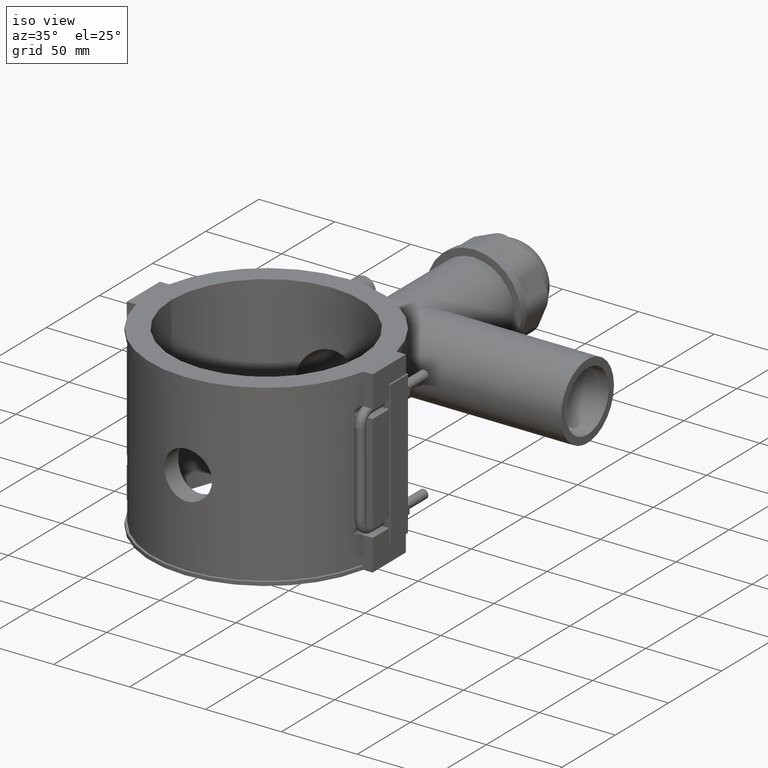
[diagram: clean part render]
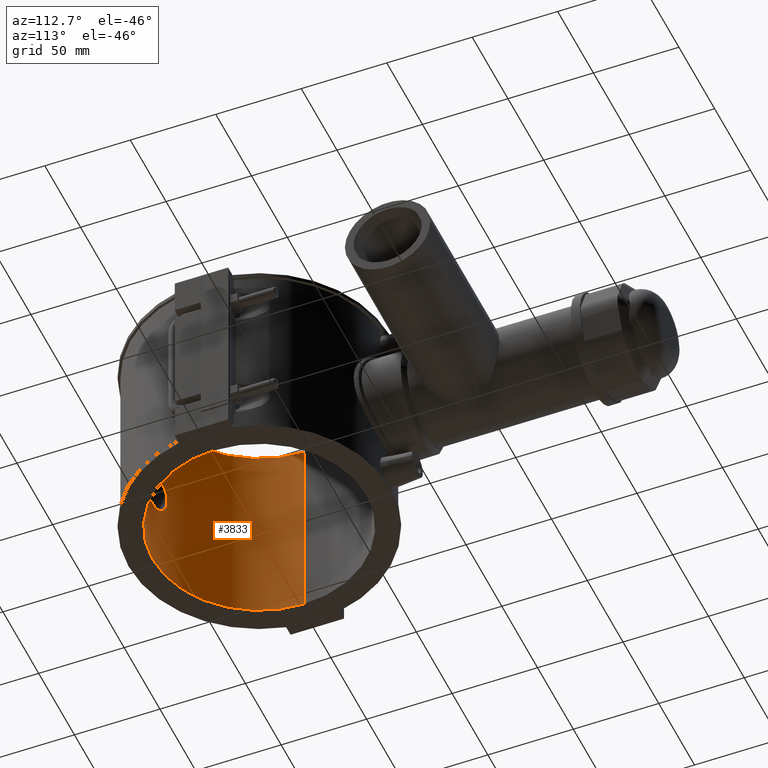
[diagram: tour spotlight — one face highlighted and labeled with its STEP entity id]
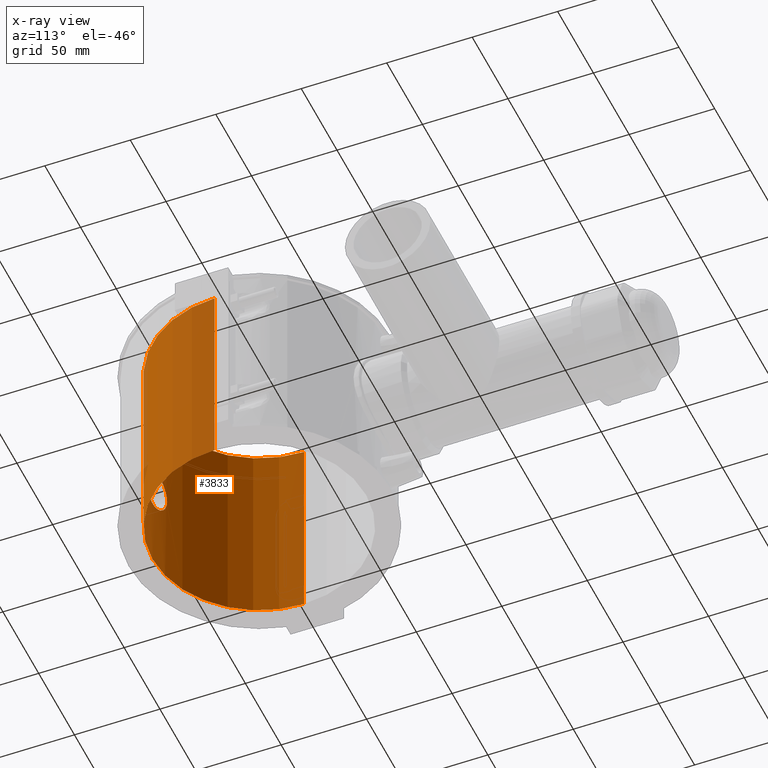
[diagram: x-ray of the same camera — body ghosted, this tour face saturated]
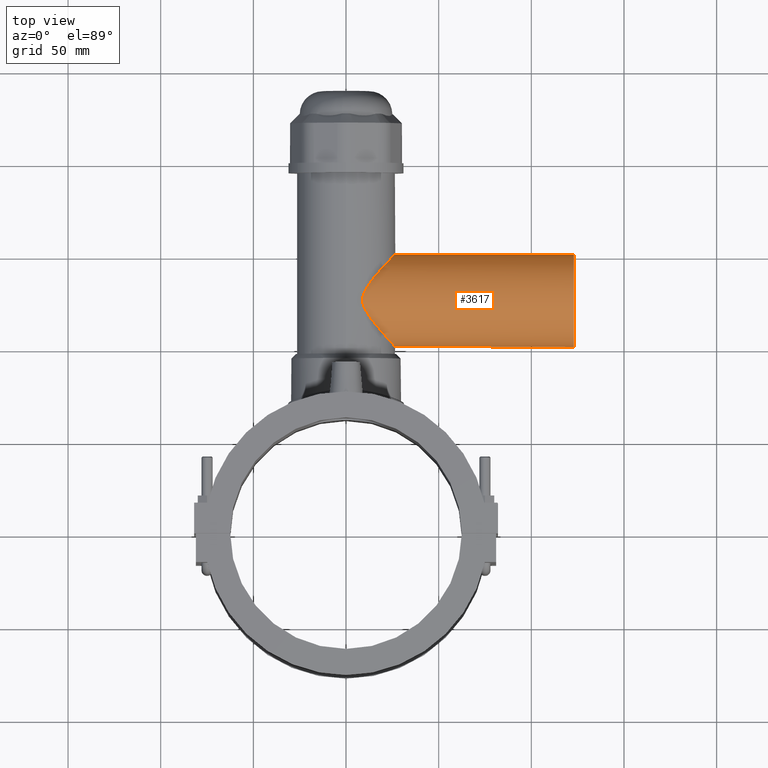
[diagram: tour spotlight — one face highlighted and labeled with its STEP entity id]
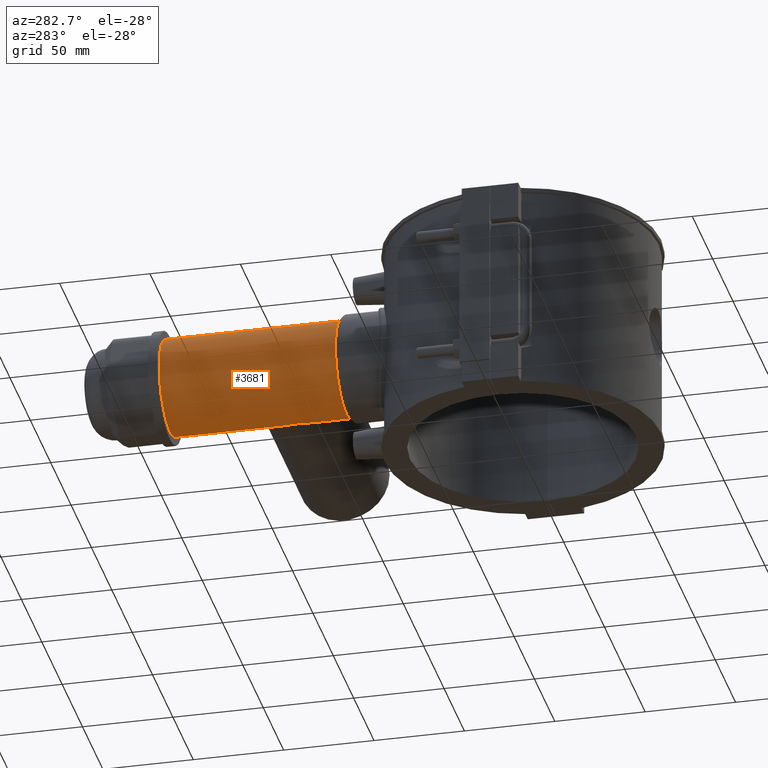
[diagram: tour spotlight — one face highlighted and labeled with its STEP entity id]
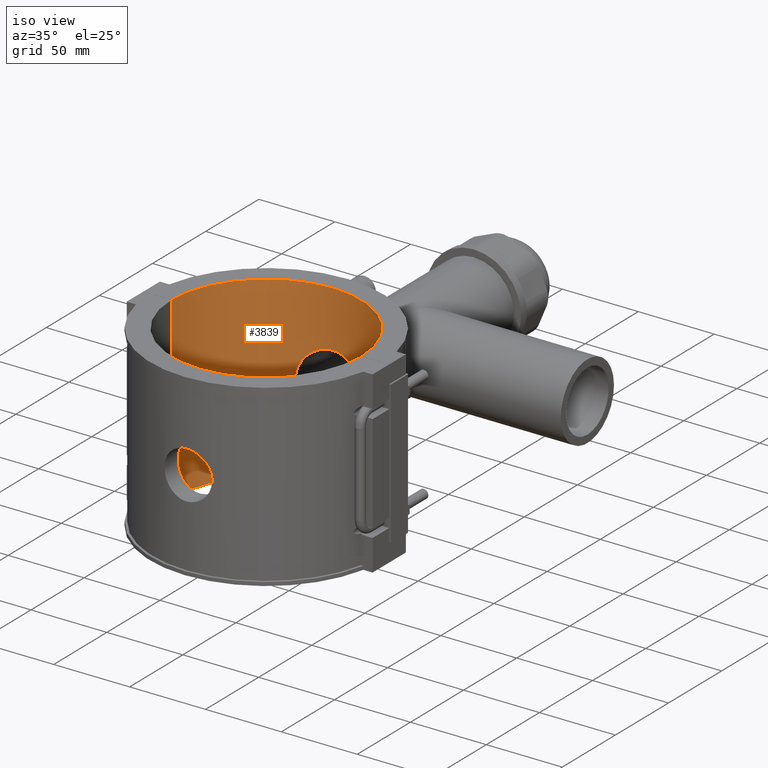
[diagram: tour spotlight — one face highlighted and labeled with its STEP entity id]
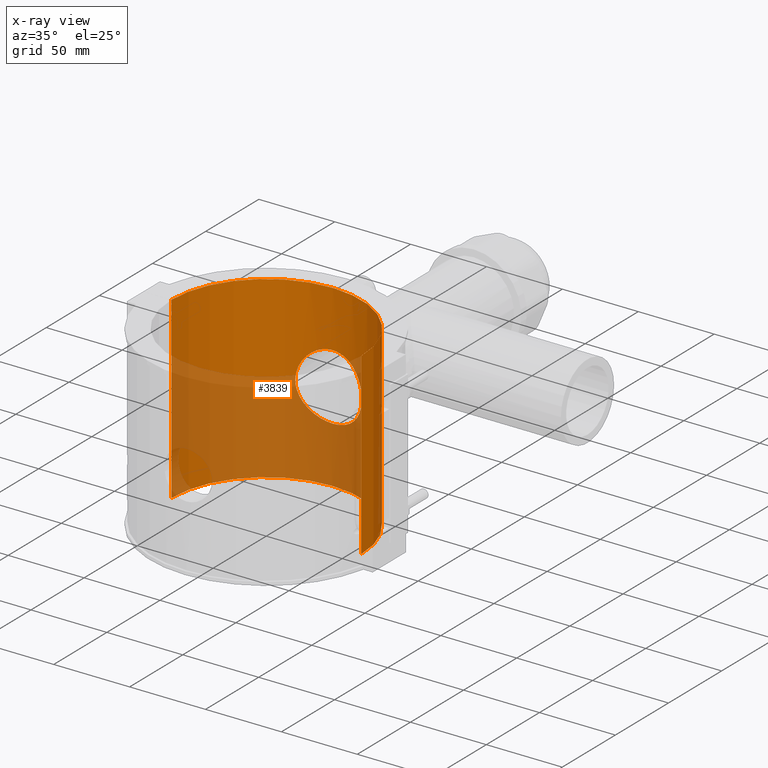
[diagram: x-ray of the same camera — body ghosted, this tour face saturated]
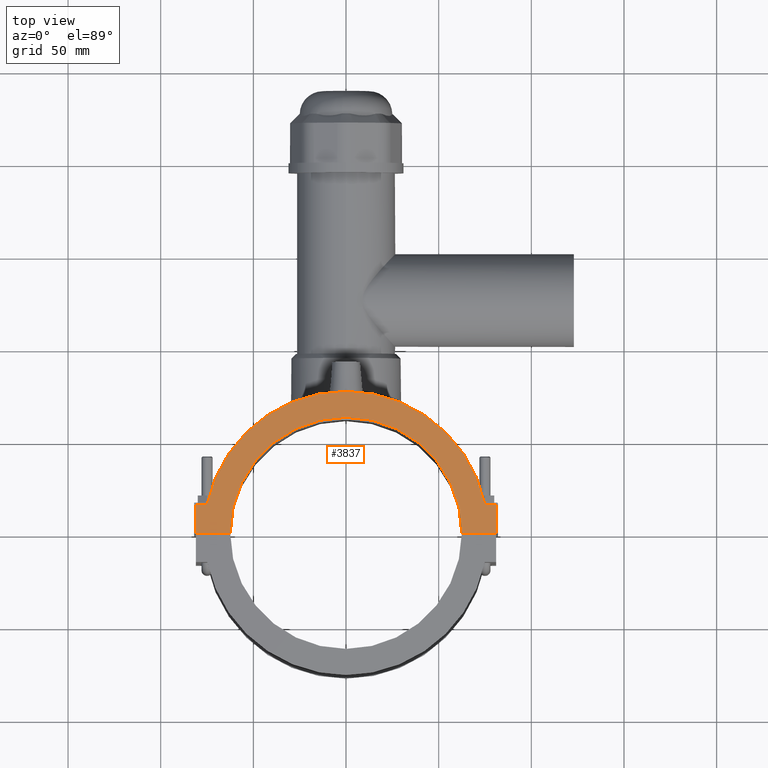
[diagram: tour spotlight — one face highlighted and labeled with its STEP entity id]
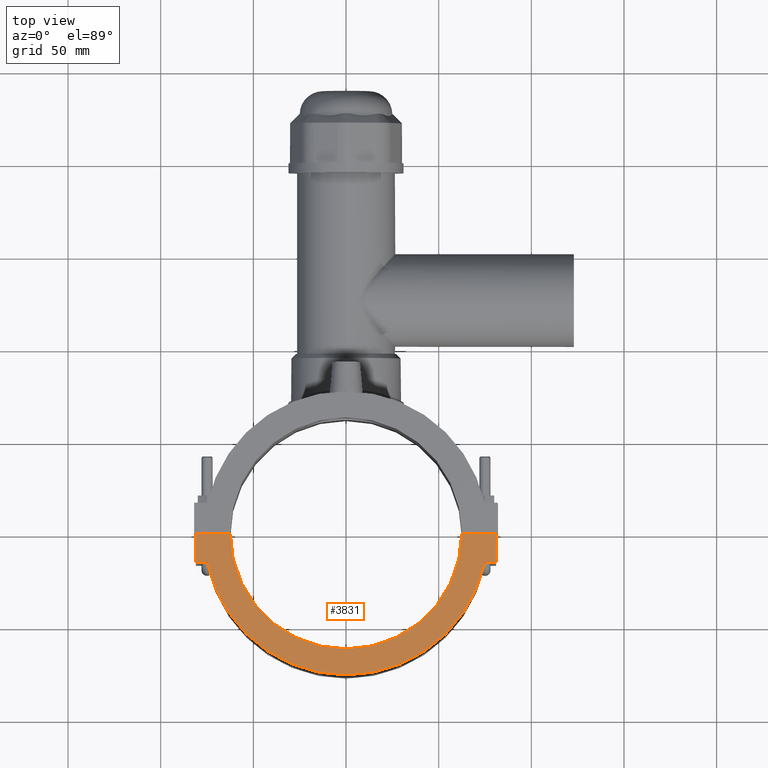
[diagram: tour spotlight — one face highlighted and labeled with its STEP entity id]
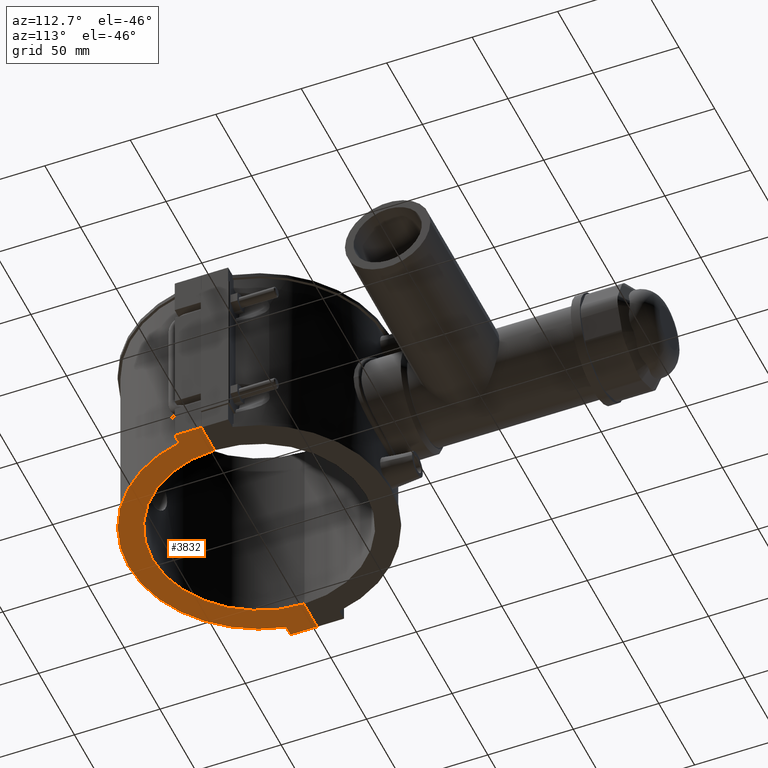
[diagram: tour spotlight — one face highlighted and labeled with its STEP entity id]
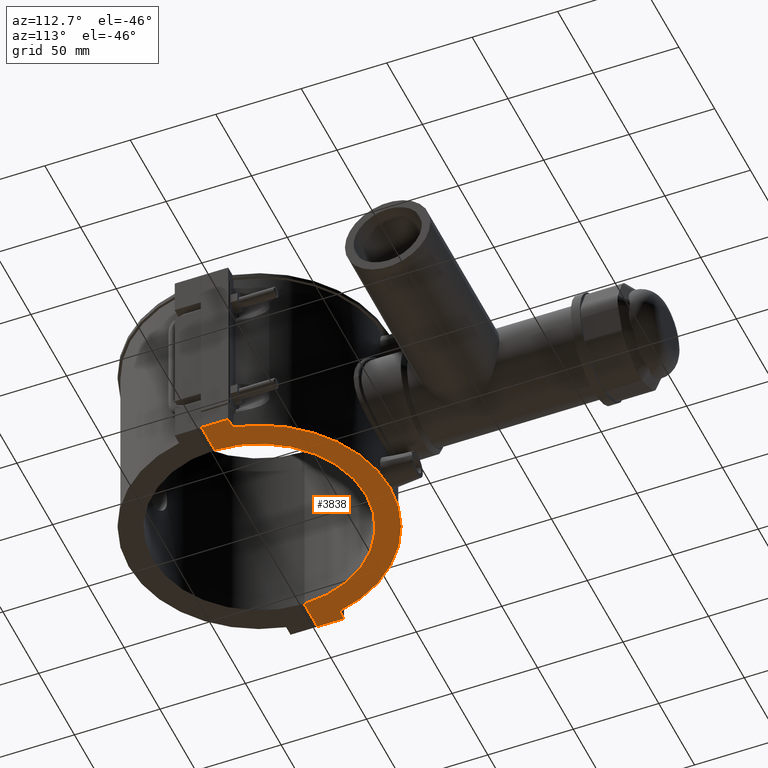
[diagram: tour spotlight — one face highlighted and labeled with its STEP entity id]
A machine part: a face-by-face anatomy tour. The part has 227 B-rep faces; the first image is the clean iso view, then the 8 largest visible faces are spotlighted one at a time (largest first), each with its STEP entity span.

Face 1 — auxiliary view, entity #3833. An x-ray twin of the same camera follows (body ghosted, this face saturated) — the face is partly hidden behind the body. In plain terms, the highlighted cylindrical surface (partial cylindrical patch) has radius 62.5 mm, axis along (0, 0, 1).
Definition (entity closure, byte-faithful):
#284=LINE('',#7705,#583);
#337=LINE('',#8097,#636);
#583=VECTOR('',#4917,118.);
#636=VECTOR('',#5106,118.);
#711=FACE_BOUND('',#1378,.T.);
#760=B_SPLINE_CURVE_WITH_KNOTS('',3,(#6211,#6212,#6213,#6214,#6215,#6216,
#6217,#6218,#6219,#6220,#6221,#6222,#6223,#6224,#6225,#6226,#6227,#6228,
#6229,#6230,#6231,#6232,#6233,#6234,#6235,#6236,#6237,#6238,#6239,#6240,
#6241,#6242,#6243,#6244,#6245,#6246,#6247,#6248,#6249,#6250,#6251,#6252,
#6253,#6254,#6255,#6256,#6257,#6258,#6259,#6260,#6261,#6262,#6263,#6264,
#6265,#6266,#6267,#6268,#6269,#6270,#6271,#6272,#6273,#6274,#6275,#6276),
 .UNSPECIFIED.,.T.,.F.,(4,2,2,2,2,2,2,2,2,2,2,2,2,2,2,2,2,2,2,2,2,2,2,2,
2,2,2,2,2,2,2,2,4),(0.,0.296713617074853,0.593427234149707,0.89014085122456,
1.18685446829941,1.48352599418842,1.78019752007742,2.07686904596642,2.37354057185543,
2.67021209774443,2.96688362363343,3.26355514952244,3.56022667541144,3.85694029248629,
4.15365390956114,4.450367526636,4.74708114371085,5.04379476078571,5.34050837786056,
5.63722199493541,5.93393561201027,6.23060713789927,6.52727866378827,6.82395018967727,
7.12062171556628,7.41729324145528,7.71396476734428,8.01063629323329,8.30730781912229,
8.60402143619714,8.900735053272,9.19744867034685,9.4941622874217),
 .UNSPECIFIED.);
#875=CYLINDRICAL_SURFACE('',#4166,62.5);
#1097=FACE_OUTER_BOUND('',#1377,.T.);
#1377=EDGE_LOOP('',(#3440,#3441,#3442,#3443));
#1378=EDGE_LOOP('',(#3444));
#1512=CIRCLE('',#4163,62.5);
#1513=CIRCLE('',#4165,62.5);
#1611=VERTEX_POINT('',#6210);
#1811=VERTEX_POINT('',#7702);
#1812=VERTEX_POINT('',#7704);
#1864=VERTEX_POINT('',#8094);
#1865=VERTEX_POINT('',#8096);
#2020=EDGE_CURVE('',#1611,#1611,#760,.T.);
#2298=EDGE_CURVE('',#1812,#1811,#284,.T.);
#2391=EDGE_CURVE('',#1865,#1864,#337,.T.);
#2393=EDGE_CURVE('',#1865,#1811,#1512,.T.);
#2394=EDGE_CURVE('',#1812,#1864,#1513,.T.);
#3440=ORIENTED_EDGE('',*,*,#2391,.T.);
#3441=ORIENTED_EDGE('',*,*,#2394,.F.);
#3442=ORIENTED_EDGE('',*,*,#2298,.T.);
#3443=ORIENTED_EDGE('',*,*,#2393,.F.);
#3444=ORIENTED_EDGE('',*,*,#2020,.T.);
#3833=ADVANCED_FACE('',(#1097,#711),#875,.F.);
#4163=AXIS2_PLACEMENT_3D('',#8101,#5112,#5113);
#4165=AXIS2_PLACEMENT_3D('',#8103,#5116,#5117);
#4166=AXIS2_PLACEMENT_3D('',#8104,#5118,#5119);
#4917=DIRECTION('',(0.,0.,1.));
#5106=DIRECTION('',(0.,0.,-1.));
#5112=DIRECTION('center_axis',(0.,0.,-1.));
#5113=DIRECTION('ref_axis',(-1.,0.,0.));
#5116=DIRECTION('center_axis',(0.,0.,1.));
#5117=DIRECTION('ref_axis',(-1.,0.,0.));
#5118=DIRECTION('center_axis',(0.,0.,1.));
#5119=DIRECTION('ref_axis',(-1.,0.,0.));
#6210=CARTESIAN_POINT('',(15.68,-60.5011371793952,-2.77555756156289E-16));
#6211=CARTESIAN_POINT('Ctrl Pts',(15.68,-60.5011371793952,-2.77555756156289E-16));
#6212=CARTESIAN_POINT('Ctrl Pts',(15.68,-60.5011371793952,0.989045390249511));
#6213=CARTESIAN_POINT('Ctrl Pts',(15.5849128879652,-60.5260509344362,2.01044452076717));
#6214=CARTESIAN_POINT('Ctrl Pts',(15.1859893214769,-60.6273707143846,4.03944615733215));
#6215=CARTESIAN_POINT('Ctrl Pts',(14.882254018715,-60.7036916421501,5.04707279805853));
#6216=CARTESIAN_POINT('Ctrl Pts',(14.0808790626117,-60.8945687159385,6.97734078903111));
#6217=CARTESIAN_POINT('Ctrl Pts',(13.5826027393085,-61.0090844109358,7.9016004003937));
#6218=CARTESIAN_POINT('Ctrl Pts',(12.4327969197639,-61.2537430575092,9.60978391321038));
#6219=CARTESIAN_POINT('Ctrl Pts',(11.7811822567518,-61.3836351907405,10.3936864012583));
#6220=CARTESIAN_POINT('Ctrl Pts',(10.3937848149181,-61.6337247036271,11.781083843092));
#6221=CARTESIAN_POINT('Ctrl Pts',(9.60992827535144,-61.7627993138526,12.4326873128922));
#6222=CARTESIAN_POINT('Ctrl Pts',(7.90171663618481,-62.004491569047,13.5825369316202));
#6223=CARTESIAN_POINT('Ctrl Pts',(6.97738300336776,-62.1168773493664,14.0808636950187));
#6224=CARTESIAN_POINT('Ctrl Pts',(5.04696967397419,-62.3034382855447,14.88229467369));
#6225=CARTESIAN_POINT('Ctrl Pts',(4.039273959469,-62.3776074704934,15.1860356320058));
#6226=CARTESIAN_POINT('Ctrl Pts',(2.0102529703561,-62.4759196079409,15.5849380920303));
#6227=CARTESIAN_POINT('Ctrl Pts',(0.988905086296677,-62.5,15.68));
#6228=CARTESIAN_POINT('Ctrl Pts',(-0.988905086296675,-62.5,15.68));
#6229=CARTESIAN_POINT('Ctrl Pts',(-2.0102529703561,-62.4759196079409,15.5849380920303));
#6230=CARTESIAN_POINT('Ctrl Pts',(-4.039273959469,-62.3776074704934,15.1860356320058));
#6231=CARTESIAN_POINT('Ctrl Pts',(-5.04696967397419,-62.3034382855447,14.88229467369));
#6232=CARTESIAN_POINT('Ctrl Pts',(-6.97738300336776,-62.1168773493664,14.0808636950187));
#6233=CARTESIAN_POINT('Ctrl Pts',(-7.90171663618481,-62.004491569047,13.5825369316202));
#6234=CARTESIAN_POINT('Ctrl Pts',(-9.60992827535144,-61.7627993138526,12.4326873128922));
#6235=CARTESIAN_POINT('Ctrl Pts',(-10.3937848149181,-61.6337247036271,11.781083843092));
#6236=CARTESIAN_POINT('Ctrl Pts',(-11.7811822567518,-61.3836351907405,10.3936864012583));
#6237=CARTESIAN_POINT('Ctrl Pts',(-12.4327969197639,-61.2537430575092,9.60978391321039));
#6238=CARTESIAN_POINT('Ctrl Pts',(-13.5826027393085,-61.0090844109358,7.9016004003937));
#6239=CARTESIAN_POINT('Ctrl Pts',(-14.0808790626117,-60.8945687159385,6.97734078903112));
#6240=CARTESIAN_POINT('Ctrl Pts',(-14.882254018715,-60.7036916421501,5.04707279805853));
#6241=CARTESIAN_POINT('Ctrl Pts',(-15.1859893214769,-60.6273707143846,4.03944615733215));
#6242=CARTESIAN_POINT('Ctrl Pts',(-15.5849128879652,-60.5260509344362,2.01044452076717));
#6243=CARTESIAN_POINT('Ctrl Pts',(-15.68,-60.5011371793952,0.989045390249513));
#6244=CARTESIAN_POINT('Ctrl Pts',(-15.68,-60.5011371793952,-0.989045390249513));
#6245=CARTESIAN_POINT('Ctrl Pts',(-15.5849128879652,-60.5260509344362,-2.01044452076717));
#6246=CARTESIAN_POINT('Ctrl Pts',(-15.1859893214769,-60.6273707143846,-4.03944615733215));
#6247=CARTESIAN_POINT('Ctrl Pts',(-14.882254018715,-60.7036916421501,-5.04707279805853));
#6248=CARTESIAN_POINT('Ctrl Pts',(-14.0808790626117,-60.8945687159385,-6.97734078903111));
#6249=CARTESIAN_POINT('Ctrl Pts',(-13.5826027393085,-61.0090844109358,-7.90160040039369));
#6250=CARTESIAN_POINT('Ctrl Pts',(-12.4327969197639,-61.2537430575092,-9.60978391321038));
#6251=CARTESIAN_POINT('Ctrl Pts',(-11.7811822567518,-61.3836351907405,-10.3936864012583));
#6252=CARTESIAN_POINT('Ctrl Pts',(-10.3937848149181,-61.6337247036271,-11.781083843092));
#6253=CARTESIAN_POINT('Ctrl Pts',(-9.60992827535144,-61.7627993138526,-12.4326873128922));
#6254=CARTESIAN_POINT('Ctrl Pts',(-7.90171663618481,-62.004491569047,-13.5825369316202));
#6255=CARTESIAN_POINT('Ctrl Pts',(-6.97738300336776,-62.1168773493664,-14.0808636950187));
#6256=CARTESIAN_POINT('Ctrl Pts',(-5.04696967397419,-62.3034382855447,-14.88229467369));
#6257=CARTESIAN_POINT('Ctrl Pts',(-4.039273959469,-62.3776074704934,-15.1860356320058));
#6258=CARTESIAN_POINT('Ctrl Pts',(-2.01025297035611,-62.4759196079409,-15.5849380920303));
#6259=CARTESIAN_POINT('Ctrl Pts',(-0.988905086296681,-62.5,-15.68));
#6260=CARTESIAN_POINT('Ctrl Pts',(0.988905086296675,-62.5,-15.68));
#6261=CARTESIAN_POINT('Ctrl Pts',(2.0102529703561,-62.4759196079409,-15.5849380920303));
#6262=CARTESIAN_POINT('Ctrl Pts',(4.039273959469,-62.3776074704934,-15.1860356320058));
#6263=CARTESIAN_POINT('Ctrl Pts',(5.04696967397418,-62.3034382855447,-14.88229467369));
#6264=CARTESIAN_POINT('Ctrl Pts',(6.97738300336775,-62.1168773493664,-14.0808636950187));
#6265=CARTESIAN_POINT('Ctrl Pts',(7.90171663618481,-62.004491569047,-13.5825369316202));
#6266=CARTESIAN_POINT('Ctrl Pts',(9.60992827535144,-61.7627993138526,-12.4326873128922));
#6267=CARTESIAN_POINT('Ctrl Pts',(10.3937848149181,-61.6337247036271,-11.781083843092));
#6268=CARTESIAN_POINT('Ctrl Pts',(11.7811822567518,-61.3836351907405,-10.3936864012583));
#6269=CARTESIAN_POINT('Ctrl Pts',(12.4327969197639,-61.2537430575092,-9.60978391321038));
#6270=CARTESIAN_POINT('Ctrl Pts',(13.5826027393085,-61.0090844109358,-7.9016004003937));
#6271=CARTESIAN_POINT('Ctrl Pts',(14.0808790626117,-60.8945687159385,-6.97734078903111));
#6272=CARTESIAN_POINT('Ctrl Pts',(14.882254018715,-60.7036916421501,-5.04707279805852));
#6273=CARTESIAN_POINT('Ctrl Pts',(15.1859893214769,-60.6273707143846,-4.03944615733214));
#6274=CARTESIAN_POINT('Ctrl Pts',(15.5849128879652,-60.5260509344362,-2.01044452076716));
#6275=CARTESIAN_POINT('Ctrl Pts',(15.68,-60.5011371793952,-0.989045390249508));
#6276=CARTESIAN_POINT('Ctrl Pts',(15.68,-60.5011371793952,-2.77555756156289E-16));
#7702=CARTESIAN_POINT('',(-62.4999799999968,-0.0500000000000078,59.));
#7704=CARTESIAN_POINT('',(-62.4999799999968,-0.0500000000000078,-59.));
#7705=CARTESIAN_POINT('',(-62.4999799999968,-0.0500000000000078,0.));
#8094=CARTESIAN_POINT('',(62.4999799999968,-0.0500000000000078,-59.));
#8096=CARTESIAN_POINT('',(62.4999799999968,-0.0500000000000078,59.));
#8097=CARTESIAN_POINT('',(62.4999799999968,-0.0500000000000078,0.));
#8101=CARTESIAN_POINT('Origin',(0.,0.,59.));
#8103=CARTESIAN_POINT('Origin',(0.,0.,-59.));
#8104=CARTESIAN_POINT('Origin',(0.,0.,0.));

Face 2 — top view, entity #3617. In plain terms, the highlighted cylindrical surface (bore or boss wall) has radius 25 mm, axis along (1, 0, 0).
Definition (entity closure, byte-faithful):
#661=FACE_BOUND('',#1112,.T.);
#718=B_SPLINE_CURVE_WITH_KNOTS('',3,(#5356,#5357,#5358,#5359,#5360,#5361,
#5362,#5363,#5364,#5365,#5366,#5367,#5368,#5369,#5370,#5371,#5372,#5373,
#5374,#5375,#5376,#5377,#5378,#5379,#5380,#5381,#5382,#5383,#5384,#5385,
#5386,#5387,#5388,#5389,#5390,#5391,#5392,#5393,#5394,#5395,#5396,#5397,
#5398,#5399,#5400,#5401,#5402,#5403,#5404,#5405,#5406,#5407,#5408,#5409,
#5410,#5411,#5412,#5413,#5414,#5415,#5416,#5417,#5418,#5419,#5420,#5421,
#5422,#5423,#5424,#5425,#5426,#5427,#5428,#5429),.UNSPECIFIED.,.T.,.F.,
(4,2,2,2,2,2,2,2,2,2,2,2,2,2,2,2,2,2,2,2,2,2,2,2,2,2,2,2,2,2,2,2,2,2,2,
2,4),(0.,0.285995308411291,0.571990616822582,1.14398123364516,1.71597185046775,
2.28796246729033,2.79805614993726,3.30814983258419,3.81824351523112,4.32833719787805,
4.83843088052498,5.34852456317191,5.85861824581884,6.36871192846577,6.94070254528836,
7.51269316211094,8.08468377893352,8.37067908734481,8.6566743957561,8.94266970416739,
9.22866501257868,9.80065562940126,10.3726462462238,10.9446368630464,11.4547305456934,
11.9648242283403,12.4749179109872,12.9850115936341,13.4951052762811,14.005198958928,
14.5152926415749,15.0253863242219,15.5973769410445,16.169367557867,16.7413581746896,
17.0273534831009,17.3133487915122),.UNSPECIFIED.);
#824=CYLINDRICAL_SURFACE('',#3848,25.);
#881=FACE_OUTER_BOUND('',#1111,.T.);
#1111=EDGE_LOOP('',(#2408));
#1112=EDGE_LOOP('',(#2409));
#1391=CIRCLE('',#3849,25.);
#1521=VERTEX_POINT('',#5353);
#1522=VERTEX_POINT('',#5355);
#1874=EDGE_CURVE('',#1521,#1521,#1391,.T.);
#1875=EDGE_CURVE('',#1522,#1522,#718,.T.);
#2408=ORIENTED_EDGE('',*,*,#1874,.F.);
#2409=ORIENTED_EDGE('',*,*,#1875,.F.);
#3617=ADVANCED_FACE('',(#881,#661),#824,.T.);
#3848=AXIS2_PLACEMENT_3D('',#5352,#4188,#4189);
#3849=AXIS2_PLACEMENT_3D('',#5354,#4190,#4191);
#4188=DIRECTION('center_axis',(1.,0.,0.));
#4189=DIRECTION('ref_axis',(0.,1.,0.));
#4190=DIRECTION('center_axis',(1.,0.,0.));
#4191=DIRECTION('ref_axis',(0.,0.,-1.));
#5352=CARTESIAN_POINT('Origin',(61.5,126.5,0.));
#5353=CARTESIAN_POINT('',(123.,151.5,0.));
#5354=CARTESIAN_POINT('Origin',(123.,126.5,0.));
#5355=CARTESIAN_POINT('',(8.97587913521564,126.5,-25.));
#5356=CARTESIAN_POINT('Ctrl Pts',(8.97587913521564,126.5,-25.));
#5357=CARTESIAN_POINT('Ctrl Pts',(8.97587913521564,125.546682305296,-25.));
#5358=CARTESIAN_POINT('Ctrl Pts',(9.12675514127577,124.657262573868,-24.9466851331753));
#5359=CARTESIAN_POINT('Ctrl Pts',(9.61601480612379,122.955177653736,-24.7622094401188));
#5360=CARTESIAN_POINT('Ctrl Pts',(9.95398883885776,122.142439551029,-24.6306354335936));
#5361=CARTESIAN_POINT('Ctrl Pts',(11.137902254721,119.763615971992,-24.129811667077));
#5362=CARTESIAN_POINT('Ctrl Pts',(12.1452291015945,118.257727062432,-23.6560427627572));
#5363=CARTESIAN_POINT('Ctrl Pts',(14.3036651998504,115.318617649003,-22.4169603435196));
#5364=CARTESIAN_POINT('Ctrl Pts',(15.4531000944229,113.90009281468,-21.6528358177877));
#5365=CARTESIAN_POINT('Ctrl Pts',(17.7051935566466,111.221478017762,-19.8537080897632));
#5366=CARTESIAN_POINT('Ctrl Pts',(18.8090301992678,109.962775432047,-18.8181144913747));
#5367=CARTESIAN_POINT('Ctrl Pts',(20.7327356205469,107.80529670568,-16.6606357650071));
#5368=CARTESIAN_POINT('Ctrl Pts',(21.6306809514312,106.81629023828,-15.4934077272035));
#5369=CARTESIAN_POINT('Ctrl Pts',(23.274368127624,105.023075561159,-12.893247451025));
#5370=CARTESIAN_POINT('Ctrl Pts',(24.0198366014426,104.218969501488,-11.4600719668379));
#5371=CARTESIAN_POINT('Ctrl Pts',(25.2528670814387,102.894935619769,-8.40110364738774));
#5372=CARTESIAN_POINT('Ctrl Pts',(25.7415475574985,102.373763487539,-6.77145233461364));
#5373=CARTESIAN_POINT('Ctrl Pts',(26.3965110659892,101.676144254874,-3.42111691821766));
#5374=CARTESIAN_POINT('Ctrl Pts',(26.5625,101.5,-1.70031227548977));
#5375=CARTESIAN_POINT('Ctrl Pts',(26.5625,101.5,1.70031227548976));
#5376=CARTESIAN_POINT('Ctrl Pts',(26.3965110659892,101.676144254874,3.42111691821766));
#5377=CARTESIAN_POINT('Ctrl Pts',(25.7415475574985,102.373763487539,6.77145233461363));
#5378=CARTESIAN_POINT('Ctrl Pts',(25.2528670814387,102.894935619769,8.40110364738773));
#5379=CARTESIAN_POINT('Ctrl Pts',(24.0198366014427,104.218969501488,11.4600719668379));
#5380=CARTESIAN_POINT('Ctrl Pts',(23.274368127624,105.023075561159,12.893247451025));
#5381=CARTESIAN_POINT('Ctrl Pts',(21.6306809514312,106.81629023828,15.4934077272035));
#5382=CARTESIAN_POINT('Ctrl Pts',(20.7327356205469,107.80529670568,16.6606357650071));
#5383=CARTESIAN_POINT('Ctrl Pts',(18.8090301992678,109.962775432047,18.8181144913747));
#5384=CARTESIAN_POINT('Ctrl Pts',(17.7051935566466,111.221478017762,19.8537080897632));
#5385=CARTESIAN_POINT('Ctrl Pts',(15.4531000944229,113.90009281468,21.6528358177877));
#5386=CARTESIAN_POINT('Ctrl Pts',(14.3036651998504,115.318617649003,22.4169603435196));
#5387=CARTESIAN_POINT('Ctrl Pts',(12.1452291015945,118.257727062432,23.6560427627573));
#5388=CARTESIAN_POINT('Ctrl Pts',(11.1379022547211,119.763615971992,24.129811667077));
#5389=CARTESIAN_POINT('Ctrl Pts',(9.95398883885783,122.142439551029,24.6306354335936));
#5390=CARTESIAN_POINT('Ctrl Pts',(9.61601480612385,122.955177653736,24.7622094401188));
#5391=CARTESIAN_POINT('Ctrl Pts',(9.12675514127584,124.657262573868,24.9466851331753));
#5392=CARTESIAN_POINT('Ctrl Pts',(8.97587913521574,125.546682305296,25.));
#5393=CARTESIAN_POINT('Ctrl Pts',(8.97587913521575,127.453317694704,25.));
#5394=CARTESIAN_POINT('Ctrl Pts',(9.12675514127589,128.342737426132,24.9466851331752));
#5395=CARTESIAN_POINT('Ctrl Pts',(9.61601480612391,130.044822346264,24.7622094401188));
#5396=CARTESIAN_POINT('Ctrl Pts',(9.95398883885785,130.857560448971,24.6306354335936));
#5397=CARTESIAN_POINT('Ctrl Pts',(11.1379022547211,133.236384028008,24.129811667077));
#5398=CARTESIAN_POINT('Ctrl Pts',(12.1452291015945,134.742272937568,23.6560427627573));
#5399=CARTESIAN_POINT('Ctrl Pts',(14.3036651998504,137.681382350997,22.4169603435196));
#5400=CARTESIAN_POINT('Ctrl Pts',(15.4531000944229,139.09990718532,21.6528358177877));
#5401=CARTESIAN_POINT('Ctrl Pts',(17.7051935566466,141.778521982238,19.8537080897632));
#5402=CARTESIAN_POINT('Ctrl Pts',(18.8090301992678,143.037224567953,18.8181144913747));
#5403=CARTESIAN_POINT('Ctrl Pts',(20.732735620547,145.19470329432,16.6606357650071));
#5404=CARTESIAN_POINT('Ctrl Pts',(21.6306809514312,146.18370976172,15.4934077272034));
#5405=CARTESIAN_POINT('Ctrl Pts',(23.2743681276241,147.976924438841,12.893247451025));
#5406=CARTESIAN_POINT('Ctrl Pts',(24.0198366014427,148.781030498512,11.4600719668379));
#5407=CARTESIAN_POINT('Ctrl Pts',(25.2528670814387,150.105064380231,8.40110364738772));
#5408=CARTESIAN_POINT('Ctrl Pts',(25.7415475574985,150.626236512461,6.77145233461363));
#5409=CARTESIAN_POINT('Ctrl Pts',(26.3965110659892,151.323855745126,3.42111691821765));
#5410=CARTESIAN_POINT('Ctrl Pts',(26.5625,151.5,1.70031227548977));
#5411=CARTESIAN_POINT('Ctrl Pts',(26.5625,151.5,-1.70031227548976));
#5412=CARTESIAN_POINT('Ctrl Pts',(26.3965110659892,151.323855745126,-3.42111691821765));
#5413=CARTESIAN_POINT('Ctrl Pts',(25.7415475574985,150.626236512461,-6.77145233461362));
#5414=CARTESIAN_POINT('Ctrl Pts',(25.2528670814387,150.105064380231,-8.40110364738771));
#5415=CARTESIAN_POINT('Ctrl Pts',(24.0198366014426,148.781030498512,-11.4600719668379));
#5416=CARTESIAN_POINT('Ctrl Pts',(23.274368127624,147.976924438841,-12.893247451025));
#5417=CARTESIAN_POINT('Ctrl Pts',(21.6306809514312,146.18370976172,-15.4934077272034));
#5418=CARTESIAN_POINT('Ctrl Pts',(20.7327356205469,145.19470329432,-16.6606357650071));
#5419=CARTESIAN_POINT('Ctrl Pts',(18.8090301992678,143.037224567953,-18.8181144913747));
#5420=CARTESIAN_POINT('Ctrl Pts',(17.7051935566465,141.778521982238,-19.8537080897632));
#5421=CARTESIAN_POINT('Ctrl Pts',(15.4531000944228,139.09990718532,-21.6528358177877));
#5422=CARTESIAN_POINT('Ctrl Pts',(14.3036651998504,137.681382350997,-22.4169603435196));
#5423=CARTESIAN_POINT('Ctrl Pts',(12.1452291015945,134.742272937568,-23.6560427627572));
#5424=CARTESIAN_POINT('Ctrl Pts',(11.137902254721,133.236384028008,-24.129811667077));
#5425=CARTESIAN_POINT('Ctrl Pts',(9.95398883885774,130.857560448971,-24.6306354335936));
#5426=CARTESIAN_POINT('Ctrl Pts',(9.61601480612378,130.044822346264,-24.7622094401188));
#5427=CARTESIAN_POINT('Ctrl Pts',(9.12675514127575,128.342737426132,-24.9466851331753));
#5428=CARTESIAN_POINT('Ctrl Pts',(8.97587913521564,127.453317694704,-25.));
#5429=CARTESIAN_POINT('Ctrl Pts',(8.97587913521564,126.5,-25.));

Face 3 — auxiliary view, entity #3681. In plain terms, the highlighted cylindrical surface (bore or boss wall) has radius 26.5625 mm, axis along (0, 1, 0).
Definition (entity closure, byte-faithful):
#668=FACE_BOUND('',#1183,.T.);
#669=FACE_BOUND('',#1184,.T.);
#718=B_SPLINE_CURVE_WITH_KNOTS('',3,(#5356,#5357,#5358,#5359,#5360,#5361,
#5362,#5363,#5364,#5365,#5366,#5367,#5368,#5369,#5370,#5371,#5372,#5373,
#5374,#5375,#5376,#5377,#5378,#5379,#5380,#5381,#5382,#5383,#5384,#5385,
#5386,#5387,#5388,#5389,#5390,#5391,#5392,#5393,#5394,#5395,#5396,#5397,
#5398,#5399,#5400,#5401,#5402,#5403,#5404,#5405,#5406,#5407,#5408,#5409,
#5410,#5411,#5412,#5413,#5414,#5415,#5416,#5417,#5418,#5419,#5420,#5421,
#5422,#5423,#5424,#5425,#5426,#5427,#5428,#5429),.UNSPECIFIED.,.T.,.F.,
(4,2,2,2,2,2,2,2,2,2,2,2,2,2,2,2,2,2,2,2,2,2,2,2,2,2,2,2,2,2,2,2,2,2,2,
2,4),(0.,0.285995308411291,0.571990616822582,1.14398123364516,1.71597185046775,
2.28796246729033,2.79805614993726,3.30814983258419,3.81824351523112,4.32833719787805,
4.83843088052498,5.34852456317191,5.85861824581884,6.36871192846577,6.94070254528836,
7.51269316211094,8.08468377893352,8.37067908734481,8.6566743957561,8.94266970416739,
9.22866501257868,9.80065562940126,10.3726462462238,10.9446368630464,11.4547305456934,
11.9648242283403,12.4749179109872,12.9850115936341,13.4951052762811,14.005198958928,
14.5152926415749,15.0253863242219,15.5973769410445,16.169367557867,16.7413581746896,
17.0273534831009,17.3133487915122),.UNSPECIFIED.);
#834=CYLINDRICAL_SURFACE('',#3934,26.5625);
#945=FACE_OUTER_BOUND('',#1182,.T.);
#1182=EDGE_LOOP('',(#2693));
#1183=EDGE_LOOP('',(#2694));
#1184=EDGE_LOOP('',(#2695));
#1422=CIRCLE('',#3916,26.5625);
#1429=CIRCLE('',#3935,26.5625);
#1522=VERTEX_POINT('',#5355);
#1598=VERTEX_POINT('',#6096);
#1608=VERTEX_POINT('',#6136);
#1875=EDGE_CURVE('',#1522,#1522,#718,.T.);
#1999=EDGE_CURVE('',#1598,#1598,#1422,.T.);
#2017=EDGE_CURVE('',#1608,#1608,#1429,.T.);
#2693=ORIENTED_EDGE('',*,*,#1999,.T.);
#2694=ORIENTED_EDGE('',*,*,#1875,.T.);
#2695=ORIENTED_EDGE('',*,*,#2017,.F.);
#3681=ADVANCED_FACE('',(#945,#668,#669),#834,.T.);
#3916=AXIS2_PLACEMENT_3D('',#6097,#4377,#4378);
#3934=AXIS2_PLACEMENT_3D('',#6135,#4424,#4425);
#3935=AXIS2_PLACEMENT_3D('',#6137,#4426,#4427);
#4377=DIRECTION('center_axis',(0.,1.,3.06161699786838E-16));
#4378=DIRECTION('ref_axis',(1.,0.,0.));
#4424=DIRECTION('center_axis',(0.,1.,3.06161699786838E-16));
#4425=DIRECTION('ref_axis',(0.,0.,1.));
#4426=DIRECTION('center_axis',(0.,1.,3.06161699786838E-16));
#4427=DIRECTION('ref_axis',(1.,0.,0.));
#5355=CARTESIAN_POINT('',(8.97587913521564,126.5,-25.));
#5356=CARTESIAN_POINT('Ctrl Pts',(8.97587913521564,126.5,-25.));
#5357=CARTESIAN_POINT('Ctrl Pts',(8.97587913521564,125.546682305296,-25.));
#5358=CARTESIAN_POINT('Ctrl Pts',(9.12675514127577,124.657262573868,-24.9466851331753));
#5359=CARTESIAN_POINT('Ctrl Pts',(9.61601480612379,122.955177653736,-24.7622094401188));
#5360=CARTESIAN_POINT('Ctrl Pts',(9.95398883885776,122.142439551029,-24.6306354335936));
#5361=CARTESIAN_POINT('Ctrl Pts',(11.137902254721,119.763615971992,-24.129811667077));
#5362=CARTESIAN_POINT('Ctrl Pts',(12.1452291015945,118.257727062432,-23.6560427627572));
#5363=CARTESIAN_POINT('Ctrl Pts',(14.3036651998504,115.318617649003,-22.4169603435196));
#5364=CARTESIAN_POINT('Ctrl Pts',(15.4531000944229,113.90009281468,-21.6528358177877));
#5365=CARTESIAN_POINT('Ctrl Pts',(17.7051935566466,111.221478017762,-19.8537080897632));
#5366=CARTESIAN_POINT('Ctrl Pts',(18.8090301992678,109.962775432047,-18.8181144913747));
#5367=CARTESIAN_POINT('Ctrl Pts',(20.7327356205469,107.80529670568,-16.6606357650071));
#5368=CARTESIAN_POINT('Ctrl Pts',(21.6306809514312,106.81629023828,-15.4934077272035));
#5369=CARTESIAN_POINT('Ctrl Pts',(23.274368127624,105.023075561159,-12.893247451025));
#5370=CARTESIAN_POINT('Ctrl Pts',(24.0198366014426,104.218969501488,-11.4600719668379));
#5371=CARTESIAN_POINT('Ctrl Pts',(25.2528670814387,102.894935619769,-8.40110364738774));
#5372=CARTESIAN_POINT('Ctrl Pts',(25.7415475574985,102.373763487539,-6.77145233461364));
#5373=CARTESIAN_POINT('Ctrl Pts',(26.3965110659892,101.676144254874,-3.42111691821766));
#5374=CARTESIAN_POINT('Ctrl Pts',(26.5625,101.5,-1.70031227548977));
#5375=CARTESIAN_POINT('Ctrl Pts',(26.5625,101.5,1.70031227548976));
#5376=CARTESIAN_POINT('Ctrl Pts',(26.3965110659892,101.676144254874,3.42111691821766));
#5377=CARTESIAN_POINT('Ctrl Pts',(25.7415475574985,102.373763487539,6.77145233461363));
#5378=CARTESIAN_POINT('Ctrl Pts',(25.2528670814387,102.894935619769,8.40110364738773));
#5379=CARTESIAN_POINT('Ctrl Pts',(24.0198366014427,104.218969501488,11.4600719668379));
#5380=CARTESIAN_POINT('Ctrl Pts',(23.274368127624,105.023075561159,12.893247451025));
#5381=CARTESIAN_POINT('Ctrl Pts',(21.6306809514312,106.81629023828,15.4934077272035));
#5382=CARTESIAN_POINT('Ctrl Pts',(20.7327356205469,107.80529670568,16.6606357650071));
#5383=CARTESIAN_POINT('Ctrl Pts',(18.8090301992678,109.962775432047,18.8181144913747));
#5384=CARTESIAN_POINT('Ctrl Pts',(17.7051935566466,111.221478017762,19.8537080897632));
#5385=CARTESIAN_POINT('Ctrl Pts',(15.4531000944229,113.90009281468,21.6528358177877));
#5386=CARTESIAN_POINT('Ctrl Pts',(14.3036651998504,115.318617649003,22.4169603435196));
#5387=CARTESIAN_POINT('Ctrl Pts',(12.1452291015945,118.257727062432,23.6560427627573));
#5388=CARTESIAN_POINT('Ctrl Pts',(11.1379022547211,119.763615971992,24.129811667077));
#5389=CARTESIAN_POINT('Ctrl Pts',(9.95398883885783,122.142439551029,24.6306354335936));
#5390=CARTESIAN_POINT('Ctrl Pts',(9.61601480612385,122.955177653736,24.7622094401188));
#5391=CARTESIAN_POINT('Ctrl Pts',(9.12675514127584,124.657262573868,24.9466851331753));
#5392=CARTESIAN_POINT('Ctrl Pts',(8.97587913521574,125.546682305296,25.));
#5393=CARTESIAN_POINT('Ctrl Pts',(8.97587913521575,127.453317694704,25.));
#5394=CARTESIAN_POINT('Ctrl Pts',(9.12675514127589,128.342737426132,24.9466851331752));
#5395=CARTESIAN_POINT('Ctrl Pts',(9.61601480612391,130.044822346264,24.7622094401188));
#5396=CARTESIAN_POINT('Ctrl Pts',(9.95398883885785,130.857560448971,24.6306354335936));
#5397=CARTESIAN_POINT('Ctrl Pts',(11.1379022547211,133.236384028008,24.129811667077));
#5398=CARTESIAN_POINT('Ctrl Pts',(12.1452291015945,134.742272937568,23.6560427627573));
#5399=CARTESIAN_POINT('Ctrl Pts',(14.3036651998504,137.681382350997,22.4169603435196));
#5400=CARTESIAN_POINT('Ctrl Pts',(15.4531000944229,139.09990718532,21.6528358177877));
#5401=CARTESIAN_POINT('Ctrl Pts',(17.7051935566466,141.778521982238,19.8537080897632));
#5402=CARTESIAN_POINT('Ctrl Pts',(18.8090301992678,143.037224567953,18.8181144913747));
#5403=CARTESIAN_POINT('Ctrl Pts',(20.732735620547,145.19470329432,16.6606357650071));
#5404=CARTESIAN_POINT('Ctrl Pts',(21.6306809514312,146.18370976172,15.4934077272034));
#5405=CARTESIAN_POINT('Ctrl Pts',(23.2743681276241,147.976924438841,12.893247451025));
#5406=CARTESIAN_POINT('Ctrl Pts',(24.0198366014427,148.781030498512,11.4600719668379));
#5407=CARTESIAN_POINT('Ctrl Pts',(25.2528670814387,150.105064380231,8.40110364738772));
#5408=CARTESIAN_POINT('Ctrl Pts',(25.7415475574985,150.626236512461,6.77145233461363));
#5409=CARTESIAN_POINT('Ctrl Pts',(26.3965110659892,151.323855745126,3.42111691821765));
#5410=CARTESIAN_POINT('Ctrl Pts',(26.5625,151.5,1.70031227548977));
#5411=CARTESIAN_POINT('Ctrl Pts',(26.5625,151.5,-1.70031227548976));
#5412=CARTESIAN_POINT('Ctrl Pts',(26.3965110659892,151.323855745126,-3.42111691821765));
#5413=CARTESIAN_POINT('Ctrl Pts',(25.7415475574985,150.626236512461,-6.77145233461362));
#5414=CARTESIAN_POINT('Ctrl Pts',(25.2528670814387,150.105064380231,-8.40110364738771));
#5415=CARTESIAN_POINT('Ctrl Pts',(24.0198366014426,148.781030498512,-11.4600719668379));
#5416=CARTESIAN_POINT('Ctrl Pts',(23.274368127624,147.976924438841,-12.893247451025));
#5417=CARTESIAN_POINT('Ctrl Pts',(21.6306809514312,146.18370976172,-15.4934077272034));
#5418=CARTESIAN_POINT('Ctrl Pts',(20.7327356205469,145.19470329432,-16.6606357650071));
#5419=CARTESIAN_POINT('Ctrl Pts',(18.8090301992678,143.037224567953,-18.8181144913747));
#5420=CARTESIAN_POINT('Ctrl Pts',(17.7051935566465,141.778521982238,-19.8537080897632));
#5421=CARTESIAN_POINT('Ctrl Pts',(15.4531000944228,139.09990718532,-21.6528358177877));
#5422=CARTESIAN_POINT('Ctrl Pts',(14.3036651998504,137.681382350997,-22.4169603435196));
#5423=CARTESIAN_POINT('Ctrl Pts',(12.1452291015945,134.742272937568,-23.6560427627572));
#5424=CARTESIAN_POINT('Ctrl Pts',(11.137902254721,133.236384028008,-24.129811667077));
#5425=CARTESIAN_POINT('Ctrl Pts',(9.95398883885774,130.857560448971,-24.6306354335936));
#5426=CARTESIAN_POINT('Ctrl Pts',(9.61601480612378,130.044822346264,-24.7622094401188));
#5427=CARTESIAN_POINT('Ctrl Pts',(9.12675514127575,128.342737426132,-24.9466851331753));
#5428=CARTESIAN_POINT('Ctrl Pts',(8.97587913521564,127.453317694704,-25.));
#5429=CARTESIAN_POINT('Ctrl Pts',(8.97587913521564,126.5,-25.));
#6096=CARTESIAN_POINT('',(0.,97.6,26.5625));
#6097=CARTESIAN_POINT('Origin',(0.,97.6,1.0746275662518E-14));
#6135=CARTESIAN_POINT('Origin',(0.,146.425,2.56946206546104E-14));
#6136=CARTESIAN_POINT('',(0.,195.25,26.5625000000001));
#6137=CARTESIAN_POINT('Origin',(0.,195.25,4.06429656467028E-14));

Face 4 — iso view, entity #3839. An x-ray twin of the same camera follows (body ghosted, this face saturated) — the face is partly hidden behind the body. In plain terms, the highlighted cylindrical surface (partial cylindrical patch) has radius 62.5 mm, axis along (0, 0, 1).
Definition (entity closure, byte-faithful):
#280=LINE('',#7697,#579);
#340=LINE('',#8111,#639);
#579=VECTOR('',#4911,118.);
#639=VECTOR('',#5127,118.);
#714=FACE_BOUND('',#1387,.T.);
#715=B_SPLINE_CURVE_WITH_KNOTS('',3,(#5149,#5150,#5151,#5152,#5153,#5154,
#5155,#5156,#5157,#5158,#5159,#5160,#5161,#5162,#5163,#5164,#5165,#5166,
#5167,#5168,#5169,#5170,#5171,#5172,#5173,#5174,#5175,#5176,#5177,#5178,
#5179,#5180,#5181,#5182,#5183,#5184,#5185,#5186,#5187,#5188,#5189,#5190,
#5191,#5192,#5193,#5194,#5195,#5196,#5197,#5198,#5199,#5200,#5201,#5202,
#5203,#5204,#5205,#5206,#5207,#5208,#5209,#5210,#5211,#5212,#5213,#5214),
 .UNSPECIFIED.,.T.,.F.,(4,2,2,2,2,2,2,2,2,2,2,2,2,2,2,2,2,2,2,2,2,2,2,2,
2,2,2,2,2,2,2,2,4),(0.,0.415957538762255,0.831915077524511,1.24787261628677,
1.66383015504902,2.07955045950405,2.49527076395908,2.91099106841411,3.32671137286914,
3.74243167732417,4.1581519817792,4.57387228623423,4.98959259068926,5.40555012945152,
5.82150766821377,6.23746520697603,6.65342274573829,7.06938028450054,7.4853378232628,
7.90129536202505,8.31725290078731,8.73297320524234,9.14869350969737,9.5644138141524,
9.98013411860743,10.3958544230625,10.8115747275175,11.2272950319725,11.6430153364275,
12.0589728751898,12.4749304139521,12.8908879527143,13.3068454914766),
 .UNSPECIFIED.);
#877=CYLINDRICAL_SURFACE('',#4174,62.5);
#1103=FACE_OUTER_BOUND('',#1386,.T.);
#1386=EDGE_LOOP('',(#3479,#3480,#3481,#3482));
#1387=EDGE_LOOP('',(#3483));
#1514=CIRCLE('',#4171,62.5);
#1515=CIRCLE('',#4173,62.5);
#1517=VERTEX_POINT('',#5148);
#1808=VERTEX_POINT('',#7694);
#1809=VERTEX_POINT('',#7696);
#1866=VERTEX_POINT('',#8108);
#1867=VERTEX_POINT('',#8110);
#1870=EDGE_CURVE('',#1517,#1517,#715,.T.);
#2294=EDGE_CURVE('',#1809,#1808,#280,.T.);
#2396=EDGE_CURVE('',#1867,#1866,#340,.T.);
#2399=EDGE_CURVE('',#1809,#1866,#1514,.T.);
#2400=EDGE_CURVE('',#1867,#1808,#1515,.T.);
#3479=ORIENTED_EDGE('',*,*,#2396,.T.);
#3480=ORIENTED_EDGE('',*,*,#2399,.F.);
#3481=ORIENTED_EDGE('',*,*,#2294,.T.);
#3482=ORIENTED_EDGE('',*,*,#2400,.F.);
#3483=ORIENTED_EDGE('',*,*,#1870,.T.);
#3839=ADVANCED_FACE('',(#1103,#714),#877,.F.);
#4171=AXIS2_PLACEMENT_3D('',#8116,#5132,#5133);
#4173=AXIS2_PLACEMENT_3D('',#8118,#5136,#5137);
#4174=AXIS2_PLACEMENT_3D('',#8120,#5139,#5140);
#4911=DIRECTION('',(0.,0.,-1.));
#5127=DIRECTION('',(0.,0.,1.));
#5132=DIRECTION('center_axis',(0.,0.,-1.));
#5133=DIRECTION('ref_axis',(-1.,0.,0.));
#5136=DIRECTION('center_axis',(0.,0.,1.));
#5137=DIRECTION('ref_axis',(-1.,0.,0.));
#5139=DIRECTION('center_axis',(0.,0.,1.));
#5140=DIRECTION('ref_axis',(-1.,0.,0.));
#5148=CARTESIAN_POINT('',(-21.875,58.546856234985,4.08006961549745E-14));
#5149=CARTESIAN_POINT('Ctrl Pts',(-21.875,58.546856234985,4.08006961549745E-14));
#5150=CARTESIAN_POINT('Ctrl Pts',(-21.875,58.546856234985,1.38652512920756));
#5151=CARTESIAN_POINT('Ctrl Pts',(-21.7410555530225,58.5974848041858,2.81619892029824));
#5152=CARTESIAN_POINT('Ctrl Pts',(-21.181553524313,58.8020451352234,5.65210256194904));
#5153=CARTESIAN_POINT('Ctrl Pts',(-20.7561622986103,58.9557603133794,7.05838084918068));
#5154=CARTESIAN_POINT('Ctrl Pts',(-19.6365392524231,59.3380673422095,9.74912227916599));
#5155=CARTESIAN_POINT('Ctrl Pts',(-18.941419537031,59.5665433440774,11.0359525388268));
#5156=CARTESIAN_POINT('Ctrl Pts',(-17.3396075448962,60.052381052861,13.4129651034833));
#5157=CARTESIAN_POINT('Ctrl Pts',(-16.4327708795824,60.3092499931612,14.503150797329));
#5158=CARTESIAN_POINT('Ctrl Pts',(-14.5037010603255,60.801999295391,16.4322206165859));
#5159=CARTESIAN_POINT('Ctrl Pts',(-13.4137767451013,61.0556263927817,17.3389901282091));
#5160=CARTESIAN_POINT('Ctrl Pts',(-11.0366196352524,61.5297647304821,18.9410404236467));
#5161=CARTESIAN_POINT('Ctrl Pts',(-9.7493830046302,61.7498501438917,19.6364415115092));
#5162=CARTESIAN_POINT('Ctrl Pts',(-7.05782881870611,62.1150667241444,20.7563812510251));
#5163=CARTESIAN_POINT('Ctrl Pts',(-5.65115621672553,62.2602157339597,21.181809420401));
#5164=CARTESIAN_POINT('Ctrl Pts',(-2.81512860072898,62.4527427803412,21.7411974802081));
#5165=CARTESIAN_POINT('Ctrl Pts',(-1.38573434818344,62.5,21.875));
#5166=CARTESIAN_POINT('Ctrl Pts',(1.38573434818343,62.5,21.875));
#5167=CARTESIAN_POINT('Ctrl Pts',(2.81512860072897,62.4527427803412,21.7411974802082));
#5168=CARTESIAN_POINT('Ctrl Pts',(5.65115621672552,62.2602157339597,21.181809420401));
#5169=CARTESIAN_POINT('Ctrl Pts',(7.0578288187061,62.1150667241444,20.7563812510251));
#5170=CARTESIAN_POINT('Ctrl Pts',(9.74938300463019,61.7498501438917,19.6364415115092));
#5171=CARTESIAN_POINT('Ctrl Pts',(11.0366196352524,61.5297647304822,18.9410404236467));
#5172=CARTESIAN_POINT('Ctrl Pts',(13.4137767451013,61.0556263927818,17.3389901282091));
#5173=CARTESIAN_POINT('Ctrl Pts',(14.5037010603255,60.801999295391,16.432220616586));
#5174=CARTESIAN_POINT('Ctrl Pts',(16.4327708795824,60.3092499931612,14.503150797329));
#5175=CARTESIAN_POINT('Ctrl Pts',(17.3396075448962,60.052381052861,13.4129651034833));
#5176=CARTESIAN_POINT('Ctrl Pts',(18.941419537031,59.5665433440774,11.0359525388268));
#5177=CARTESIAN_POINT('Ctrl Pts',(19.6365392524231,59.3380673422095,9.749122279166));
#5178=CARTESIAN_POINT('Ctrl Pts',(20.7561622986103,58.9557603133794,7.05838084918069));
#5179=CARTESIAN_POINT('Ctrl Pts',(21.181553524313,58.8020451352234,5.65210256194905));
#5180=CARTESIAN_POINT('Ctrl Pts',(21.7410555530225,58.5974848041858,2.81619892029824));
#5181=CARTESIAN_POINT('Ctrl Pts',(21.875,58.546856234985,1.38652512920756));
#5182=CARTESIAN_POINT('Ctrl Pts',(21.875,58.546856234985,-1.38652512920748));
#5183=CARTESIAN_POINT('Ctrl Pts',(21.7410555530225,58.5974848041858,-2.81619892029815));
#5184=CARTESIAN_POINT('Ctrl Pts',(21.181553524313,58.8020451352234,-5.65210256194896));
#5185=CARTESIAN_POINT('Ctrl Pts',(20.7561622986103,58.9557603133794,-7.0583808491806));
#5186=CARTESIAN_POINT('Ctrl Pts',(19.6365392524231,59.3380673422095,-9.74912227916591));
#5187=CARTESIAN_POINT('Ctrl Pts',(18.941419537031,59.5665433440774,-11.0359525388267));
#5188=CARTESIAN_POINT('Ctrl Pts',(17.3396075448962,60.052381052861,-13.4129651034832));
#5189=CARTESIAN_POINT('Ctrl Pts',(16.4327708795824,60.3092499931612,-14.5031507973289));
#5190=CARTESIAN_POINT('Ctrl Pts',(14.5037010603255,60.801999295391,-16.4322206165859));
#5191=CARTESIAN_POINT('Ctrl Pts',(13.4137767451013,61.0556263927817,-17.338990128209));
#5192=CARTESIAN_POINT('Ctrl Pts',(11.0366196352524,61.5297647304821,-18.9410404236466));
#5193=CARTESIAN_POINT('Ctrl Pts',(9.7493830046302,61.7498501438917,-19.6364415115091));
#5194=CARTESIAN_POINT('Ctrl Pts',(7.05782881870611,62.1150667241444,-20.756381251025));
#5195=CARTESIAN_POINT('Ctrl Pts',(5.65115621672553,62.2602157339597,-21.1818094204009));
#5196=CARTESIAN_POINT('Ctrl Pts',(2.81512860072899,62.4527427803412,-21.7411974802081));
#5197=CARTESIAN_POINT('Ctrl Pts',(1.38573434818344,62.5,-21.8749999999999));
#5198=CARTESIAN_POINT('Ctrl Pts',(-1.38573434818343,62.5,-21.8749999999999));
#5199=CARTESIAN_POINT('Ctrl Pts',(-2.81512860072897,62.4527427803412,-21.7411974802081));
#5200=CARTESIAN_POINT('Ctrl Pts',(-5.65115621672551,62.2602157339597,-21.1818094204009));
#5201=CARTESIAN_POINT('Ctrl Pts',(-7.05782881870608,62.1150667241444,-20.7563812510251));
#5202=CARTESIAN_POINT('Ctrl Pts',(-9.74938300463018,61.7498501438917,-19.6364415115091));
#5203=CARTESIAN_POINT('Ctrl Pts',(-11.0366196352524,61.5297647304822,-18.9410404236466));
#5204=CARTESIAN_POINT('Ctrl Pts',(-13.4137767451012,61.0556263927818,-17.338990128209));
#5205=CARTESIAN_POINT('Ctrl Pts',(-14.5037010603255,60.801999295391,-16.4322206165859));
#5206=CARTESIAN_POINT('Ctrl Pts',(-16.4327708795824,60.3092499931612,-14.5031507973289));
#5207=CARTESIAN_POINT('Ctrl Pts',(-17.3396075448962,60.052381052861,-13.4129651034832));
#5208=CARTESIAN_POINT('Ctrl Pts',(-18.941419537031,59.5665433440774,-11.0359525388268));
#5209=CARTESIAN_POINT('Ctrl Pts',(-19.6365392524231,59.3380673422095,-9.74912227916592));
#5210=CARTESIAN_POINT('Ctrl Pts',(-20.7561622986103,58.9557603133794,-7.05838084918061));
#5211=CARTESIAN_POINT('Ctrl Pts',(-21.181553524313,58.8020451352234,-5.65210256194898));
#5212=CARTESIAN_POINT('Ctrl Pts',(-21.7410555530225,58.5974848041858,-2.81619892029817));
#5213=CARTESIAN_POINT('Ctrl Pts',(-21.875,58.546856234985,-1.38652512920748));
#5214=CARTESIAN_POINT('Ctrl Pts',(-21.875,58.546856234985,4.10782519111308E-14));
#7694=CARTESIAN_POINT('',(-62.4999799999968,0.0500000000000078,-59.));
#7696=CARTESIAN_POINT('',(-62.4999799999968,0.0500000000000078,59.));
#7697=CARTESIAN_POINT('',(-62.4999799999968,0.0500000000000078,0.));
#8108=CARTESIAN_POINT('',(62.4999799999968,0.0500000000000078,59.));
#8110=CARTESIAN_POINT('',(62.4999799999968,0.0500000000000078,-59.));
#8111=CARTESIAN_POINT('',(62.4999799999968,0.0500000000000078,0.));
#8116=CARTESIAN_POINT('Origin',(0.,0.,59.));
#8118=CARTESIAN_POINT('Origin',(0.,0.,-59.));
#8120=CARTESIAN_POINT('Origin',(0.,0.,0.));

Face 5 — top view, entity #3837. In plain terms, the highlighted planar face has unit normal (0, 0, 1).
Definition (entity closure, byte-faithful):
#136=LINE('',#6581,#435);
#181=LINE('',#6982,#480);
#224=LINE('',#7266,#523);
#226=LINE('',#7269,#525);
#281=LINE('',#7698,#580);
#339=LINE('',#8109,#638);
#435=VECTOR('',#4517,6.11268882514207);
#480=VECTOR('',#4594,15.575);
#523=VECTOR('',#4673,15.575);
#525=VECTOR('',#4677,6.11268882514207);
#580=VECTOR('',#4912,18.5000200000032);
#638=VECTOR('',#5126,18.5000200000032);
#1101=FACE_OUTER_BOUND('',#1384,.T.);
#1384=EDGE_LOOP('',(#3463,#3464,#3465,#3466,#3467,#3468,#3469,#3470));
#1439=CIRCLE('',#3957,76.5);
#1514=CIRCLE('',#4171,62.5);
#1634=VERTEX_POINT('',#6545);
#1635=VERTEX_POINT('',#6546);
#1648=VERTEX_POINT('',#6579);
#1706=VERTEX_POINT('',#6980);
#1742=VERTEX_POINT('',#7263);
#1743=VERTEX_POINT('',#7265);
#1809=VERTEX_POINT('',#7696);
#1866=VERTEX_POINT('',#8108);
#2048=EDGE_CURVE('',#1634,#1635,#1439,.T.);
#2065=EDGE_CURVE('',#1635,#1648,#136,.T.);
#2136=EDGE_CURVE('',#1648,#1706,#181,.T.);
#2188=EDGE_CURVE('',#1743,#1742,#224,.T.);
#2190=EDGE_CURVE('',#1742,#1634,#226,.T.);
#2295=EDGE_CURVE('',#1706,#1809,#281,.T.);
#2395=EDGE_CURVE('',#1866,#1743,#339,.T.);
#2399=EDGE_CURVE('',#1809,#1866,#1514,.T.);
#3463=ORIENTED_EDGE('',*,*,#2395,.T.);
#3464=ORIENTED_EDGE('',*,*,#2188,.T.);
#3465=ORIENTED_EDGE('',*,*,#2190,.T.);
#3466=ORIENTED_EDGE('',*,*,#2048,.T.);
#3467=ORIENTED_EDGE('',*,*,#2065,.T.);
#3468=ORIENTED_EDGE('',*,*,#2136,.T.);
#3469=ORIENTED_EDGE('',*,*,#2295,.T.);
#3470=ORIENTED_EDGE('',*,*,#2399,.T.);
#3611=PLANE('',#4170);
#3837=ADVANCED_FACE('',(#1101),#3611,.T.);
#3957=AXIS2_PLACEMENT_3D('',#6547,#4486,#4487);
#4170=AXIS2_PLACEMENT_3D('',#8115,#5130,#5131);
#4171=AXIS2_PLACEMENT_3D('',#8116,#5132,#5133);
#4486=DIRECTION('center_axis',(0.,0.,1.));
#4487=DIRECTION('ref_axis',(0.97891910032494,0.204248366013072,0.));
#4517=DIRECTION('',(-1.,0.,0.));
#4594=DIRECTION('',(0.,-1.,0.));
#4673=DIRECTION('',(0.,1.,0.));
#4677=DIRECTION('',(-1.,0.,0.));
#4912=DIRECTION('',(1.,-2.14163392095902E-19,0.));
#5126=DIRECTION('',(1.,-2.14163392095902E-19,0.));
#5130=DIRECTION('center_axis',(0.,0.,1.));
#5131=DIRECTION('ref_axis',(1.,0.,0.));
#5132=DIRECTION('center_axis',(0.,0.,-1.));
#5133=DIRECTION('ref_axis',(-1.,0.,0.));
#6545=CARTESIAN_POINT('',(74.8873111748579,15.625,59.));
#6546=CARTESIAN_POINT('',(-74.8873111748579,15.625,59.));
#6547=CARTESIAN_POINT('Origin',(0.,0.,59.));
#6579=CARTESIAN_POINT('',(-81.,15.625,59.));
#6581=CARTESIAN_POINT('',(-73.3543412144094,15.625,59.));
#6980=CARTESIAN_POINT('',(-81.,0.0500000000000078,59.));
#6982=CARTESIAN_POINT('',(-81.,15.625,59.));
#7263=CARTESIAN_POINT('',(81.,15.625,59.));
#7265=CARTESIAN_POINT('',(81.,0.0500000000000078,59.));
#7266=CARTESIAN_POINT('',(81.,-15.625,59.));
#7269=CARTESIAN_POINT('',(81.,15.625,59.));
#7696=CARTESIAN_POINT('',(-62.4999799999968,0.0500000000000078,59.));
#7698=CARTESIAN_POINT('',(1.51877421223587,0.0500000000000078,59.));
#8108=CARTESIAN_POINT('',(62.4999799999968,0.0500000000000078,59.));
#8109=CARTESIAN_POINT('',(1.51877421223587,0.0500000000000078,59.));
#8115=CARTESIAN_POINT('Origin',(-77.9624515755282,3.65355741629484E-16,
59.));
#8116=CARTESIAN_POINT('Origin',(0.,0.,59.));

Face 6 — top view, entity #3831. In plain terms, the highlighted planar face has unit normal (0, 0, 1).
Definition (entity closure, byte-faithful):
#148=LINE('',#6744,#447);
#283=LINE('',#7703,#582);
#289=LINE('',#7713,#588);
#291=LINE('',#7717,#590);
#334=LINE('',#8090,#633);
#338=LINE('',#8098,#637);
#447=VECTOR('',#4543,6.11268882514207);
#582=VECTOR('',#4916,18.5000200000032);
#588=VECTOR('',#4924,15.575);
#590=VECTOR('',#4930,6.11268882514207);
#633=VECTOR('',#5099,15.575);
#637=VECTOR('',#5107,18.5000200000032);
#1095=FACE_OUTER_BOUND('',#1375,.T.);
#1375=EDGE_LOOP('',(#3424,#3425,#3426,#3427,#3428,#3429,#3430,#3431));
#1442=CIRCLE('',#3962,76.5);
#1512=CIRCLE('',#4163,62.5);
#1640=VERTEX_POINT('',#6560);
#1641=VERTEX_POINT('',#6561);
#1668=VERTEX_POINT('',#6742);
#1810=VERTEX_POINT('',#7700);
#1811=VERTEX_POINT('',#7702);
#1814=VERTEX_POINT('',#7711);
#1863=VERTEX_POINT('',#8088);
#1865=VERTEX_POINT('',#8096);
#2055=EDGE_CURVE('',#1640,#1641,#1442,.T.);
#2088=EDGE_CURVE('',#1641,#1668,#148,.T.);
#2297=EDGE_CURVE('',#1811,#1810,#283,.T.);
#2303=EDGE_CURVE('',#1810,#1814,#289,.T.);
#2305=EDGE_CURVE('',#1814,#1640,#291,.T.);
#2388=EDGE_CURVE('',#1668,#1863,#334,.T.);
#2392=EDGE_CURVE('',#1863,#1865,#338,.T.);
#2393=EDGE_CURVE('',#1865,#1811,#1512,.T.);
#3424=ORIENTED_EDGE('',*,*,#2392,.T.);
#3425=ORIENTED_EDGE('',*,*,#2393,.T.);
#3426=ORIENTED_EDGE('',*,*,#2297,.T.);
#3427=ORIENTED_EDGE('',*,*,#2303,.T.);
#3428=ORIENTED_EDGE('',*,*,#2305,.T.);
#3429=ORIENTED_EDGE('',*,*,#2055,.T.);
#3430=ORIENTED_EDGE('',*,*,#2088,.T.);
#3431=ORIENTED_EDGE('',*,*,#2388,.T.);
#3607=PLANE('',#4162);
#3831=ADVANCED_FACE('',(#1095),#3607,.T.);
#3962=AXIS2_PLACEMENT_3D('',#6562,#4500,#4501);
#4162=AXIS2_PLACEMENT_3D('',#8100,#5110,#5111);
#4163=AXIS2_PLACEMENT_3D('',#8101,#5112,#5113);
#4500=DIRECTION('center_axis',(0.,0.,1.));
#4501=DIRECTION('ref_axis',(-0.97891910032494,-0.204248366013072,0.));
#4543=DIRECTION('',(1.,0.,0.));
#4916=DIRECTION('',(-1.,-2.14163392095902E-19,0.));
#4924=DIRECTION('',(0.,-1.,0.));
#4930=DIRECTION('',(1.,0.,0.));
#5099=DIRECTION('',(0.,1.,0.));
#5107=DIRECTION('',(-1.,-2.14163392095902E-19,0.));
#5110=DIRECTION('center_axis',(0.,0.,1.));
#5111=DIRECTION('ref_axis',(1.,0.,0.));
#5112=DIRECTION('center_axis',(0.,0.,-1.));
#5113=DIRECTION('ref_axis',(-1.,0.,0.));
#6560=CARTESIAN_POINT('',(-74.8873111748579,-15.625,59.));
#6561=CARTESIAN_POINT('',(74.8873111748579,-15.625,59.));
#6562=CARTESIAN_POINT('Origin',(0.,0.,59.));
#6742=CARTESIAN_POINT('',(81.,-15.625,59.));
#6744=CARTESIAN_POINT('',(73.3543412144094,-15.625,59.));
#7700=CARTESIAN_POINT('',(-81.,-0.0500000000000078,59.));
#7702=CARTESIAN_POINT('',(-62.4999799999968,-0.0500000000000078,59.));
#7703=CARTESIAN_POINT('',(-79.4812257877641,-0.0500000000000078,59.));
#7711=CARTESIAN_POINT('',(-81.,-15.625,59.));
#7713=CARTESIAN_POINT('',(-81.,15.625,59.));
#7717=CARTESIAN_POINT('',(-81.,-15.625,59.));
#8088=CARTESIAN_POINT('',(81.,-0.0500000000000078,59.));
#8090=CARTESIAN_POINT('',(81.,-15.625,59.));
#8096=CARTESIAN_POINT('',(62.4999799999968,-0.0500000000000078,59.));
#8098=CARTESIAN_POINT('',(-79.4812257877641,-0.0500000000000078,59.));
#8100=CARTESIAN_POINT('Origin',(-77.9624515755282,3.65355741629484E-16,
59.));
#8101=CARTESIAN_POINT('Origin',(0.,0.,59.));

Face 7 — auxiliary view, entity #3832. In plain terms, the highlighted planar face has unit normal (0, 0, 1).
Definition (entity closure, byte-faithful):
#124=LINE('',#6543,#423);
#285=LINE('',#7707,#584);
#290=LINE('',#7715,#589);
#329=LINE('',#8081,#628);
#331=LINE('',#8085,#630);
#336=LINE('',#8095,#635);
#423=VECTOR('',#4483,6.11268882514207);
#584=VECTOR('',#4918,18.5000200000032);
#589=VECTOR('',#4927,15.575);
#628=VECTOR('',#5090,6.11268882514207);
#630=VECTOR('',#5094,15.575);
#635=VECTOR('',#5105,18.5000200000032);
#1096=FACE_OUTER_BOUND('',#1376,.T.);
#1376=EDGE_LOOP('',(#3432,#3433,#3434,#3435,#3436,#3437,#3438,#3439));
#1435=CIRCLE('',#3949,76.5);
#1513=CIRCLE('',#4165,62.5);
#1621=VERTEX_POINT('',#6512);
#1622=VERTEX_POINT('',#6513);
#1633=VERTEX_POINT('',#6541);
#1812=VERTEX_POINT('',#7704);
#1813=VERTEX_POINT('',#7706);
#1861=VERTEX_POINT('',#8080);
#1862=VERTEX_POINT('',#8084);
#1864=VERTEX_POINT('',#8094);
#2032=EDGE_CURVE('',#1621,#1622,#1435,.T.);
#2047=EDGE_CURVE('',#1621,#1633,#124,.T.);
#2299=EDGE_CURVE('',#1813,#1812,#285,.T.);
#2304=EDGE_CURVE('',#1633,#1813,#290,.T.);
#2383=EDGE_CURVE('',#1861,#1622,#329,.T.);
#2385=EDGE_CURVE('',#1862,#1861,#331,.T.);
#2390=EDGE_CURVE('',#1864,#1862,#336,.T.);
#2394=EDGE_CURVE('',#1812,#1864,#1513,.T.);
#3432=ORIENTED_EDGE('',*,*,#2390,.T.);
#3433=ORIENTED_EDGE('',*,*,#2385,.T.);
#3434=ORIENTED_EDGE('',*,*,#2383,.T.);
#3435=ORIENTED_EDGE('',*,*,#2032,.F.);
#3436=ORIENTED_EDGE('',*,*,#2047,.T.);
#3437=ORIENTED_EDGE('',*,*,#2304,.T.);
#3438=ORIENTED_EDGE('',*,*,#2299,.T.);
#3439=ORIENTED_EDGE('',*,*,#2394,.T.);
#3608=PLANE('',#4164);
#3832=ADVANCED_FACE('',(#1096),#3608,.F.);
#3949=AXIS2_PLACEMENT_3D('',#6514,#4458,#4459);
#4164=AXIS2_PLACEMENT_3D('',#8102,#5114,#5115);
#4165=AXIS2_PLACEMENT_3D('',#8103,#5116,#5117);
#4458=DIRECTION('center_axis',(0.,0.,1.));
#4459=DIRECTION('ref_axis',(-0.97891910032494,-0.204248366013072,0.));
#4483=DIRECTION('',(-1.,0.,0.));
#4918=DIRECTION('',(1.,2.14163392095902E-19,0.));
#4927=DIRECTION('',(0.,1.,0.));
#5090=DIRECTION('',(-1.,0.,0.));
#5094=DIRECTION('',(0.,-1.,0.));
#5105=DIRECTION('',(1.,2.14163392095902E-19,0.));
#5114=DIRECTION('center_axis',(0.,0.,1.));
#5115=DIRECTION('ref_axis',(1.,0.,0.));
#5116=DIRECTION('center_axis',(0.,0.,1.));
#5117=DIRECTION('ref_axis',(-1.,0.,0.));
#6512=CARTESIAN_POINT('',(-74.8873111748579,-15.625,-59.));
#6513=CARTESIAN_POINT('',(74.8873111748579,-15.625,-59.));
#6514=CARTESIAN_POINT('Origin',(0.,0.,-59.));
#6541=CARTESIAN_POINT('',(-81.,-15.625,-59.));
#6543=CARTESIAN_POINT('',(-81.,-15.625,-59.));
#7704=CARTESIAN_POINT('',(-62.4999799999968,-0.0500000000000078,-59.));
#7706=CARTESIAN_POINT('',(-81.,-0.0500000000000078,-59.));
#7707=CARTESIAN_POINT('',(-79.4812257877641,-0.0500000000000078,-59.));
#7715=CARTESIAN_POINT('',(-81.,15.625,-59.));
#8080=CARTESIAN_POINT('',(81.,-15.625,-59.));
#8081=CARTESIAN_POINT('',(73.3543412144094,-15.625,-59.));
#8084=CARTESIAN_POINT('',(81.,-0.0500000000000078,-59.));
#8085=CARTESIAN_POINT('',(81.,-15.625,-59.));
#8094=CARTESIAN_POINT('',(62.4999799999968,-0.0500000000000078,-59.));
#8095=CARTESIAN_POINT('',(-79.4812257877641,-0.0500000000000078,-59.));
#8102=CARTESIAN_POINT('Origin',(-77.9624515755282,3.65355741629484E-16,
-59.));
#8103=CARTESIAN_POINT('Origin',(0.,0.,-59.));

Face 8 — auxiliary view, entity #3838. In plain terms, the highlighted planar face has unit normal (0, 0, 1).
Definition (entity closure, byte-faithful):
#120=LINE('',#6533,#419);
#183=LINE('',#6987,#482);
#278=LINE('',#7692,#577);
#279=LINE('',#7695,#578);
#341=LINE('',#8113,#640);
#343=LINE('',#8119,#642);
#419=VECTOR('',#4475,6.11268882514207);
#482=VECTOR('',#4598,15.575);
#577=VECTOR('',#4907,6.11268882514207);
#578=VECTOR('',#4910,18.5000200000032);
#640=VECTOR('',#5128,18.5000200000032);
#642=VECTOR('',#5138,15.575);
#1102=FACE_OUTER_BOUND('',#1385,.T.);
#1385=EDGE_LOOP('',(#3471,#3472,#3473,#3474,#3475,#3476,#3477,#3478));
#1432=CIRCLE('',#3944,76.5);
#1515=CIRCLE('',#4173,62.5);
#1615=VERTEX_POINT('',#6497);
#1616=VERTEX_POINT('',#6498);
#1629=VERTEX_POINT('',#6531);
#1707=VERTEX_POINT('',#6984);
#1708=VERTEX_POINT('',#6986);
#1808=VERTEX_POINT('',#7694);
#1867=VERTEX_POINT('',#8110);
#1868=VERTEX_POINT('',#8112);
#2025=EDGE_CURVE('',#1615,#1616,#1432,.T.);
#2042=EDGE_CURVE('',#1615,#1629,#120,.T.);
#2138=EDGE_CURVE('',#1708,#1707,#183,.T.);
#2292=EDGE_CURVE('',#1707,#1616,#278,.T.);
#2293=EDGE_CURVE('',#1808,#1708,#279,.T.);
#2397=EDGE_CURVE('',#1868,#1867,#341,.T.);
#2400=EDGE_CURVE('',#1867,#1808,#1515,.T.);
#2401=EDGE_CURVE('',#1629,#1868,#343,.T.);
#3471=ORIENTED_EDGE('',*,*,#2397,.T.);
#3472=ORIENTED_EDGE('',*,*,#2400,.T.);
#3473=ORIENTED_EDGE('',*,*,#2293,.T.);
#3474=ORIENTED_EDGE('',*,*,#2138,.T.);
#3475=ORIENTED_EDGE('',*,*,#2292,.T.);
#3476=ORIENTED_EDGE('',*,*,#2025,.F.);
#3477=ORIENTED_EDGE('',*,*,#2042,.T.);
#3478=ORIENTED_EDGE('',*,*,#2401,.T.);
#3612=PLANE('',#4172);
#3838=ADVANCED_FACE('',(#1102),#3612,.F.);
#3944=AXIS2_PLACEMENT_3D('',#6499,#4444,#4445);
#4172=AXIS2_PLACEMENT_3D('',#8117,#5134,#5135);
#4173=AXIS2_PLACEMENT_3D('',#8118,#5136,#5137);
#4444=DIRECTION('center_axis',(0.,0.,1.));
#4445=DIRECTION('ref_axis',(0.97891910032494,0.204248366013072,0.));
#4475=DIRECTION('',(1.,0.,0.));
#4598=DIRECTION('',(0.,1.,0.));
#4907=DIRECTION('',(1.,0.,0.));
#4910=DIRECTION('',(-1.,2.14163392095902E-19,0.));
#5128=DIRECTION('',(-1.,2.14163392095902E-19,0.));
#5134=DIRECTION('center_axis',(0.,0.,1.));
#5135=DIRECTION('ref_axis',(1.,0.,0.));
#5136=DIRECTION('center_axis',(0.,0.,1.));
#5137=DIRECTION('ref_axis',(-1.,0.,0.));
#5138=DIRECTION('',(0.,-1.,0.));
#6497=CARTESIAN_POINT('',(74.8873111748579,15.625,-59.));
#6498=CARTESIAN_POINT('',(-74.8873111748579,15.625,-59.));
#6499=CARTESIAN_POINT('Origin',(0.,0.,-59.));
#6531=CARTESIAN_POINT('',(81.,15.625,-59.));
#6533=CARTESIAN_POINT('',(81.,15.625,-59.));
#6984=CARTESIAN_POINT('',(-81.,15.625,-59.));
#6986=CARTESIAN_POINT('',(-81.,0.0500000000000078,-59.));
#6987=CARTESIAN_POINT('',(-81.,15.625,-59.));
#7692=CARTESIAN_POINT('',(-73.3543412144094,15.625,-59.));
#7694=CARTESIAN_POINT('',(-62.4999799999968,0.0500000000000078,-59.));
#7695=CARTESIAN_POINT('',(1.51877421223587,0.0500000000000078,-59.));
#8110=CARTESIAN_POINT('',(62.4999799999968,0.0500000000000078,-59.));
#8112=CARTESIAN_POINT('',(81.,0.0500000000000078,-59.));
#8113=CARTESIAN_POINT('',(1.51877421223587,0.0500000000000078,-59.));
#8117=CARTESIAN_POINT('Origin',(-77.9624515755282,3.65355741629484E-16,
-59.));
#8118=CARTESIAN_POINT('Origin',(0.,0.,-59.));
#8119=CARTESIAN_POINT('',(81.,-15.625,-59.));